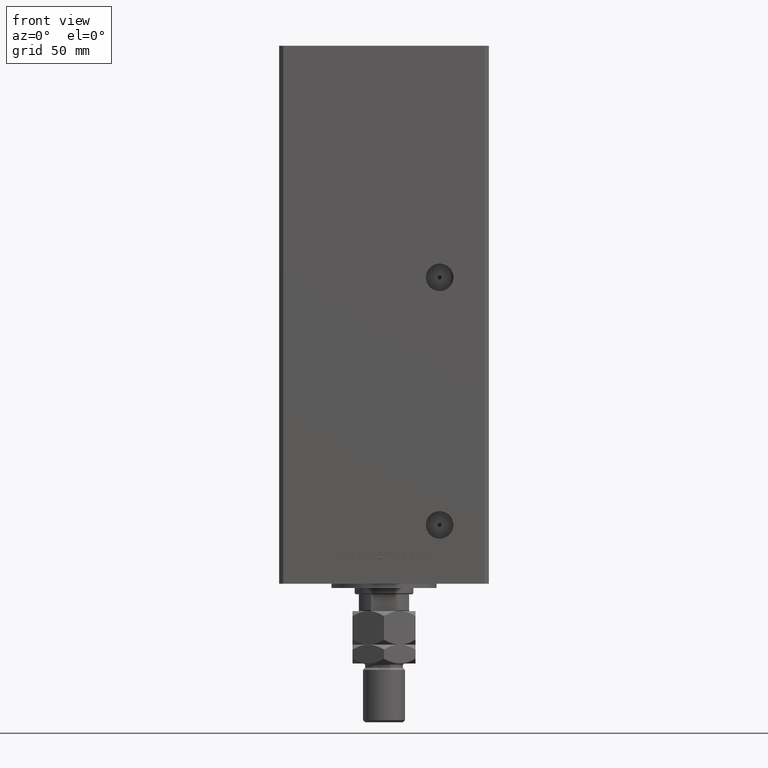
[diagram: clean part render]
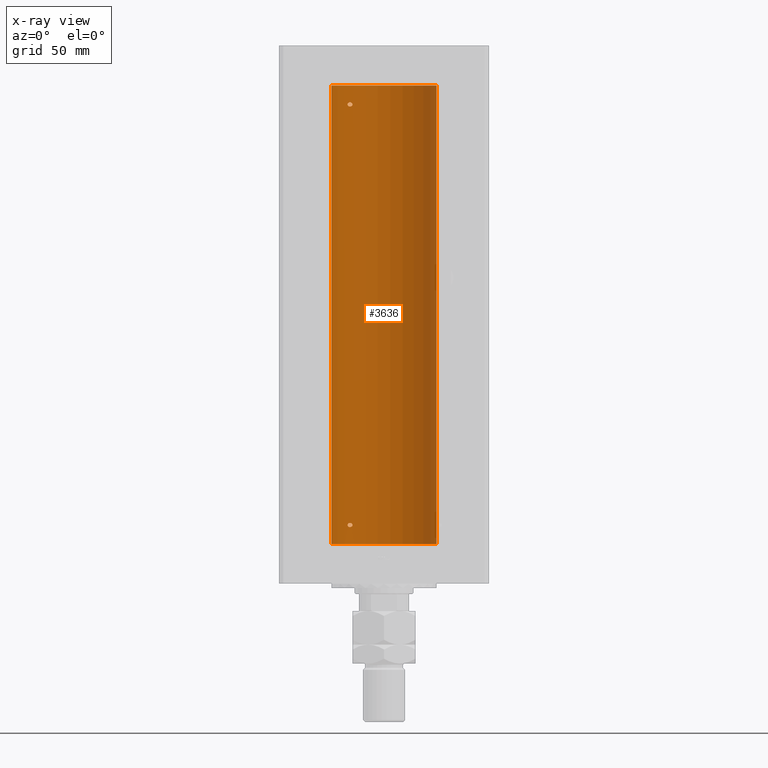
[diagram: x-ray — body ghosted, one internal face saturated and labeled with its STEP entity id]
A machine part, front view, then the same camera in x-ray: the body is ghosted and one INTERNAL B-rep face — a face not visible from any outside direction — is saturated and labeled: STEP entity #3636.
In plain terms, the highlighted cylindrical surface (partial cylindrical patch) has radius 25 mm, axis along (-0, -0, -1).
Its self-contained STEP definition (entity closure, byte-faithful):
#992 = CARTESIAN_POINT ( 'NONE',  ( 25.00000000000000000, 3.061616997868383043E-15, 0.000000000000000000 ) ) ;
#1383 = EDGE_CURVE ( 'NONE', #35095, #11781, #13237, .T. ) ;
#2317 = CARTESIAN_POINT ( 'NONE',  ( -15.70535969280556543, 19.45169171760799642, 9.898960772112495476 ) ) ;
#2929 = CARTESIAN_POINT ( 'NONE',  ( -16.08757264251635988, 19.13682698743031096, 8.003442765848202356 ) ) ;
#3201 = ORIENTED_EDGE ( 'NONE', *, *, #29396, .F. ) ;
#3269 = CARTESIAN_POINT ( 'NONE',  ( -16.34293146994552259, 18.91921593628409681, 208.4973425906725879 ) ) ;
#3311 = ORIENTED_EDGE ( 'NONE', *, *, #36010, .T. ) ;
#3636 = ADVANCED_FACE ( 'NONE', ( #5822, #45820, #30380 ), #46348, .F. ) ;
#4100 = DIRECTION ( 'NONE',  ( -0.000000000000000000, -0.000000000000000000, -1.000000000000000000 ) ) ;
#4216 = CARTESIAN_POINT ( 'NONE',  ( -17.34935157289806185, 17.99999999999981526, 209.5000000000001137 ) ) ;
#4348 = CARTESIAN_POINT ( 'NONE',  ( -14.99999999999999112, 20.00000000000000711, 209.5000000000000000 ) ) ;
#5822 = FACE_OUTER_BOUND ( 'NONE', #6387, .T. ) ;
#5971 = CARTESIAN_POINT ( 'NONE',  ( -17.05007833789896310, 18.28384926940283606, 9.701373999012135485 ) ) ;
#6243 = CARTESIAN_POINT ( 'NONE',  ( -17.34935157289750407, 17.99999999999998224, 9.170973690606334827 ) ) ;
#6387 = EDGE_LOOP ( 'NONE', ( #36569, #18365, #3311, #27981 ) ) ;
#7111 = CARTESIAN_POINT ( 'NONE',  ( -15.34666241858321456, 19.73581294411414078, 8.312122460537613833 ) ) ;
#7447 = CARTESIAN_POINT ( 'NONE',  ( -15.95808436639360117, 19.24489366819300784, 208.5242608788495886 ) ) ;
#8142 = CARTESIAN_POINT ( 'NONE',  ( -15.10490800566735103, 19.92096305044241689, 209.8962931740442457 ) ) ;
#8275 = DIRECTION ( 'NONE',  ( 1.000000000000000000, 0.000000000000000000, 0.000000000000000000 ) ) ;
#8562 = VERTEX_POINT ( 'NONE', #15895 ) ;
#8946 = CARTESIAN_POINT ( 'NONE',  ( -17.34935157289750052, 17.99999999999997868, 8.828998360425810432 ) ) ;
#9506 = CARTESIAN_POINT ( 'NONE',  ( -15.00000000000003020, 19.99999999999998224, 9.000000000000000000 ) ) ;
#9733 = CARTESIAN_POINT ( 'NONE',  ( -16.46844752485329622, 18.81003400474351750, 8.011544319038927497 ) ) ;
#10352 = EDGE_CURVE ( 'NONE', #40541, #8562, #40722, .T. ) ;
#10598 = CARTESIAN_POINT ( 'NONE',  ( -15.34666241858318259, 19.73581294411415854, 208.8121224605376369 ) ) ;
#11363 = CARTESIAN_POINT ( 'NONE',  ( -16.46844752485324648, 18.81003400474354947, 208.5115443190389612 ) ) ;
#11539 = CARTESIAN_POINT ( 'NONE',  ( -17.34935157289746854, 18.00000000000001421, 209.6709736906063029 ) ) ;
#11781 = VERTEX_POINT ( 'NONE', #992 ) ;
#11790 = CARTESIAN_POINT ( 'NONE',  ( -15.95796937689560480, 19.24499537862567422, 210.4757730996522298 ) ) ;
#12051 = EDGE_LOOP ( 'NONE', ( #33694, #39649 ) ) ;
#13237 = LINE ( 'NONE', #48797, #48372 ) ;
#13650 = CARTESIAN_POINT ( 'NONE',  ( -16.71492528194906768, 18.59135325782698089, 8.080141558342051056 ) ) ;
#14169 = CARTESIAN_POINT ( 'NONE',  ( -17.34935157289809737, 17.99999999999978684, 9.000000000000094147 ) ) ;
#14259 = CARTESIAN_POINT ( 'NONE',  ( -17.30269557861141294, 18.04515136187502478, 209.1660420817557053 ) ) ;
#14431 = CARTESIAN_POINT ( 'NONE',  ( -15.58164749401203331, 19.55082150006402486, 8.156678072685190628 ) ) ;
#15473 = CARTESIAN_POINT ( 'NONE',  ( -15.34624284195505162, 19.73614442075940190, 210.1876185318512853 ) ) ;
#15843 = CARTESIAN_POINT ( 'NONE',  ( -25.00000000000000000, 0.000000000000000000, 0.000000000000000000 ) ) ;
#15895 = CARTESIAN_POINT ( 'NONE',  ( -17.34935157289806185, 17.99999999999981526, 209.5000000000001137 ) ) ;
#16996 = B_SPLINE_CURVE_WITH_KNOTS ( 'NONE', 3,
 ( #22184, #37870, #38381, #30265, #21662, #26359, #38127, #37608, #2317, #46751, #18264, #30007, #34460, #41790, #5971, #34203, #50140, #21922, #6243, #18512 ),
 .UNSPECIFIED., .F., .F.,
 ( 4, 2, 2, 2, 2, 2, 2, 2, 2, 4 ),
 ( 0.004032696862986564698, 0.004284699222246930381, 0.004536701581507295196, 0.005040706300028027428, 0.005544711018548758794, 0.006048715737069490159, 0.007056725174110960695, 0.007308727533371327245, 0.007560729892631692928, 0.008064734611152420823 ),
 .UNSPECIFIED. ) ;
#18189 = CARTESIAN_POINT ( 'NONE',  ( -17.34935157289747210, 18.00000000000002132, 209.3289983604257998 ) ) ;
#18264 = CARTESIAN_POINT ( 'NONE',  ( -16.08745393861406825, 19.13692152169247507, 9.996501509986934764 ) ) ;
#18359 = CARTESIAN_POINT ( 'NONE',  ( -15.01482636753737054, 19.98889854010113964, 8.831202661007710120 ) ) ;
#18365 = ORIENTED_EDGE ( 'NONE', *, *, #41265, .T. ) ;
#18512 = CARTESIAN_POINT ( 'NONE',  ( -17.34935157289809737, 17.99999999999978684, 9.000000000000094147 ) ) ;
#18702 = CARTESIAN_POINT ( 'NONE',  ( -25.00000000000000000, 0.000000000000000000, 218.5000000000000000 ) ) ;
#18749 = EDGE_CURVE ( 'NONE', #23538, #41786, #27054, .T. ) ;
#19037 = CARTESIAN_POINT ( 'NONE',  ( 0.000000000000000000, 0.000000000000000000, 218.5000000000000000 ) ) ;
#19211 = CARTESIAN_POINT ( 'NONE',  ( -15.23538646979298505, 19.82157806413532697, 208.9119998952828041 ) ) ;
#19655 = CARTESIAN_POINT ( 'NONE',  ( -15.06763582406798818, 19.94912143246363811, 209.8250699387717475 ) ) ;
#20419 = CARTESIAN_POINT ( 'NONE',  ( -16.46913072925702792, 18.81168496547891777, 210.5057775588113884 ) ) ;
#20847 = CARTESIAN_POINT ( 'NONE',  ( -17.34935157289809737, 17.99999999999978684, 9.000000000000094147 ) ) ;
#21662 = CARTESIAN_POINT ( 'NONE',  ( -15.10490800566739011, 19.92096305044237425, 9.396293174044259899 ) ) ;
#21767 = CARTESIAN_POINT ( 'NONE',  ( 0.000000000000000000, 0.000000000000000000, 218.5000000000000000 ) ) ;
#21922 = CARTESIAN_POINT ( 'NONE',  ( -17.30163983552692741, 18.04615713653365106, 9.336007472727791523 ) ) ;
#22184 = CARTESIAN_POINT ( 'NONE',  ( -15.00000000000003020, 19.99999999999998224, 9.000000000000000000 ) ) ;
#22444 = VERTEX_POINT ( 'NONE', #33314 ) ;
#22696 = DIRECTION ( 'NONE',  ( -0.000000000000000000, 0.000000000000000000, 1.000000000000000000 ) ) ;
#23145 = AXIS2_PLACEMENT_3D ( 'NONE', #19037, #22696, #38643 ) ;
#23388 = CARTESIAN_POINT ( 'NONE',  ( -15.00000000000018119, 20.00000000000001421, 209.4159474586024032 ) ) ;
#23538 = VERTEX_POINT ( 'NONE', #20847 ) ;
#23824 = CARTESIAN_POINT ( 'NONE',  ( -15.00000000000018474, 20.00000000000002487, 209.5840388036241109 ) ) ;
#24072 = CARTESIAN_POINT ( 'NONE',  ( -15.23594348686699185, 19.82115246225716021, 210.0887219326858144 ) ) ;
#24200 = CIRCLE ( 'NONE', #42587, 25.00000000000000000 ) ;
#24325 = CARTESIAN_POINT ( 'NONE',  ( -15.58230678163759642, 19.55030131031898577, 210.3437394867029582 ) ) ;
#25675 = CARTESIAN_POINT ( 'NONE',  ( -16.34293146994556167, 18.91921593628406484, 7.997342590672626095 ) ) ;
#26283 = CARTESIAN_POINT ( 'NONE',  ( -16.08757264251632080, 19.13682698743034649, 208.5034427658482059 ) ) ;
#26359 = CARTESIAN_POINT ( 'NONE',  ( -15.23594348686702560, 19.82115246225712824, 9.588721932685826843 ) ) ;
#27054 = B_SPLINE_CURVE_WITH_KNOTS ( 'NONE', 3,
 ( #14169, #8946, #37448, #33788, #40834, #33517, #13650, #9733, #25675, #2929, #30374, #38224, #14431, #7111, #35323, #30882, #46847, #18359, #43173, #46068 ),
 .UNSPECIFIED., .F., .F.,
 ( 4, 2, 2, 2, 2, 2, 2, 2, 2, 4 ),
 ( 1.994630283518400476E-16, 0.0005040871078734959028, 0.001008174215746792312, 0.001512261323620088613, 0.002016348431493385131, 0.002520435539366681649, 0.003024522647239977734, 0.003528609755113270782, 0.003780653309049917740, 0.004032696862986564698 ),
 .UNSPECIFIED. ) ;
#27491 = CARTESIAN_POINT ( 'NONE',  ( -16.99843849356149050, 18.33190197607055794, 210.2468335145757123 ) ) ;
#27981 = ORIENTED_EDGE ( 'NONE', *, *, #48300, .F. ) ;
#27999 = CARTESIAN_POINT ( 'NONE',  ( -17.30163983552688833, 18.04615713653367948, 209.8360074727278572 ) ) ;
#28134 = CARTESIAN_POINT ( 'NONE',  ( 0.000000000000000000, 0.000000000000000000, 0.000000000000000000 ) ) ;
#28376 = EDGE_CURVE ( 'NONE', #8562, #40541, #46331, .T. ) ;
#29396 = EDGE_CURVE ( 'NONE', #41786, #23538, #16996, .T. ) ;
#30007 = CARTESIAN_POINT ( 'NONE',  ( -16.46913072925706700, 18.81168496547887869, 10.00577755881140973 ) ) ;
#30265 = CARTESIAN_POINT ( 'NONE',  ( -15.06763582406801483, 19.94912143246361680, 9.325069938771756384 ) ) ;
#30374 = CARTESIAN_POINT ( 'NONE',  ( -15.95808436639363492, 19.24489366819298297, 8.024260878849535317 ) ) ;
#30380 = FACE_BOUND ( 'NONE', #12051, .T. ) ;
#30448 = DIRECTION ( 'NONE',  ( -0.000000000000000000, -0.000000000000000000, -1.000000000000000000 ) ) ;
#30457 = CARTESIAN_POINT ( 'NONE',  ( -16.71492528194901794, 18.59135325782701642, 208.5801415583420351 ) ) ;
#30882 = CARTESIAN_POINT ( 'NONE',  ( -15.10490010356608792, 19.92096840819818127, 8.603766671322519599 ) ) ;
#30965 = CARTESIAN_POINT ( 'NONE',  ( -15.70664578139651546, 19.45064696206092947, 208.6005795994921925 ) ) ;
#31232 = CARTESIAN_POINT ( 'NONE',  ( -15.10490010356605595, 19.92096840819819903, 209.1037666713224894 ) ) ;
#31410 = CARTESIAN_POINT ( 'NONE',  ( -16.72476285461317502, 18.58415905903083498, 210.4449447607957211 ) ) ;
#32428 = CARTESIAN_POINT ( 'NONE',  ( -17.19010376497220705, 18.15221652163111088, 210.0356701235680248 ) ) ;
#33314 = CARTESIAN_POINT ( 'NONE',  ( -25.00000000000000000, 0.000000000000000000, 218.5000000000000000 ) ) ;
#33517 = CARTESIAN_POINT ( 'NONE',  ( -16.83415218046514994, 18.48332662461723075, 8.134317266281160030 ) ) ;
#33694 = ORIENTED_EDGE ( 'NONE', *, *, #28376, .F. ) ;
#33788 = CARTESIAN_POINT ( 'NONE',  ( -17.15234217094409530, 18.18812579706693100, 8.396573043774957057 ) ) ;
#34127 = CARTESIAN_POINT ( 'NONE',  ( -17.05249165747618534, 18.28208333366438509, 208.7922192200363725 ) ) ;
#34203 = CARTESIAN_POINT ( 'NONE',  ( -17.14593038898732047, 18.19399314418731706, 9.595944883196496633 ) ) ;
#34460 = CARTESIAN_POINT ( 'NONE',  ( -16.72476285461320700, 18.58415905903079945, 9.944944760795701555 ) ) ;
#34577 = DIRECTION ( 'NONE',  ( -1.000000000000000000, 0.000000000000000000, 0.000000000000000000 ) ) ;
#35095 = VERTEX_POINT ( 'NONE', #46649 ) ;
#35323 = CARTESIAN_POINT ( 'NONE',  ( -15.23538646979300637, 19.82157806413531276, 8.411999895282763262 ) ) ;
#36010 = EDGE_CURVE ( 'NONE', #22444, #47238, #38044, .T. ) ;
#36413 = ORIENTED_EDGE ( 'NONE', *, *, #18749, .F. ) ;
#36569 = ORIENTED_EDGE ( 'NONE', *, *, #1383, .F. ) ;
#37448 = CARTESIAN_POINT ( 'NONE',  ( -17.30269557861145202, 18.04515136187498570, 8.666042081755742643 ) ) ;
#37599 = AXIS2_PLACEMENT_3D ( 'NONE', #21767, #37709, #34577 ) ;
#37608 = CARTESIAN_POINT ( 'NONE',  ( -15.58230678163763372, 19.55030131031894669, 9.843739486702936858 ) ) ;
#37709 = DIRECTION ( 'NONE',  ( -0.000000000000000000, -0.000000000000000000, -1.000000000000000000 ) ) ;
#37870 = CARTESIAN_POINT ( 'NONE',  ( -15.00000000000022915, 19.99999999999999289, 9.084038803624169489 ) ) ;
#38044 = LINE ( 'NONE', #18702, #44821 ) ;
#38127 = CARTESIAN_POINT ( 'NONE',  ( -15.34624284195509958, 19.73614442075936637, 9.687618531851303061 ) ) ;
#38224 = CARTESIAN_POINT ( 'NONE',  ( -15.70664578139654566, 19.45064696206089749, 8.100579599492109040 ) ) ;
#38381 = CARTESIAN_POINT ( 'NONE',  ( -15.01476641895665232, 19.98894406010705183, 9.168794563401343467 ) ) ;
#38643 = DIRECTION ( 'NONE',  ( 1.000000000000000000, 0.000000000000000000, 0.000000000000000000 ) ) ;
#38834 = CARTESIAN_POINT ( 'NONE',  ( -15.01482636753733146, 19.98889854010115741, 209.3312026610076941 ) ) ;
#39082 = CARTESIAN_POINT ( 'NONE',  ( -17.15234217094406333, 18.18812579706696653, 208.8965730437749073 ) ) ;
#39649 = ORIENTED_EDGE ( 'NONE', *, *, #10352, .F. ) ;
#40025 = CARTESIAN_POINT ( 'NONE',  ( -17.05007833789892047, 18.28384926940287869, 210.2013739990121337 ) ) ;
#40541 = VERTEX_POINT ( 'NONE', #4348 ) ;
#40676 = DIRECTION ( 'NONE',  ( -0.000000000000000000, 0.000000000000000000, 1.000000000000000000 ) ) ;
#40722 = B_SPLINE_CURVE_WITH_KNOTS ( 'NONE', 3,
 ( #42683, #23824, #43953, #19655, #8142, #24072, #15473, #24325, #43438, #11790, #47371, #20419, #31410, #27491, #40025, #51286, #32428, #27999, #11539, #4216 ),
 .UNSPECIFIED., .F., .F.,
 ( 4, 2, 2, 2, 2, 2, 2, 2, 2, 4 ),
 ( 0.004032696862986557759, 0.004284699222246954667, 0.004536701581507351574, 0.005040706300028082940, 0.005544711018548810835, 0.006048715737069539598, 0.007056725174110996257, 0.007308727533371349797, 0.007560729892631701601, 0.008064734611152412150 ),
 .UNSPECIFIED. ) ;
#40834 = CARTESIAN_POINT ( 'NONE',  ( -17.05249165747622087, 18.28208333366434246, 8.292219220036422200 ) ) ;
#41265 = EDGE_CURVE ( 'NONE', #35095, #22444, #49858, .T. ) ;
#41606 = EDGE_LOOP ( 'NONE', ( #36413, #3201 ) ) ;
#41786 = VERTEX_POINT ( 'NONE', #9506 ) ;
#41790 = CARTESIAN_POINT ( 'NONE',  ( -16.99843849356151892, 18.33190197607051886, 9.746833514575651947 ) ) ;
#42492 = CARTESIAN_POINT ( 'NONE',  ( -14.99999999999999112, 20.00000000000000711, 209.5000000000000000 ) ) ;
#42587 = AXIS2_PLACEMENT_3D ( 'NONE', #28134, #40676, #8275 ) ;
#42683 = CARTESIAN_POINT ( 'NONE',  ( -14.99999999999999112, 20.00000000000000711, 209.5000000000000000 ) ) ;
#43173 = CARTESIAN_POINT ( 'NONE',  ( -15.00000000000022737, 20.00000000000001066, 8.915947458602445863 ) ) ;
#43262 = CARTESIAN_POINT ( 'NONE',  ( -15.06722189748648866, 19.94943357555938590, 209.1759803248789069 ) ) ;
#43438 = CARTESIAN_POINT ( 'NONE',  ( -15.70535969280552280, 19.45169171760802485, 210.3989607721124173 ) ) ;
#43953 = CARTESIAN_POINT ( 'NONE',  ( -15.01476641895662567, 19.98894406010707314, 209.6687945634013488 ) ) ;
#44821 = VECTOR ( 'NONE', #30448, 1000.000000000000000 ) ;
#45820 = FACE_BOUND ( 'NONE', #41606, .T. ) ;
#46068 = CARTESIAN_POINT ( 'NONE',  ( -15.00000000000003020, 19.99999999999998224, 9.000000000000000000 ) ) ;
#46331 = B_SPLINE_CURVE_WITH_KNOTS ( 'NONE', 3,
 ( #50844, #18189, #14259, #39082, #34127, #50063, #30457, #11363, #3269, #26283, #7447, #30965, #47187, #10598, #19211, #31232, #43262, #38834, #23388, #42492 ),
 .UNSPECIFIED., .F., .F.,
 ( 4, 2, 2, 2, 2, 2, 2, 2, 2, 4 ),
 ( 2.254873622441466949E-16, 0.0005040871078735091300, 0.001008174215746792746, 0.001512261323620076470, 0.002016348431493359978, 0.002520435539366643485, 0.003024522647239927427, 0.003528609755113210501, 0.003780653309049884347, 0.004032696862986557759 ),
 .UNSPECIFIED. ) ;
#46348 = CYLINDRICAL_SURFACE ( 'NONE', #37599, 25.00000000000000000 ) ;
#46649 = CARTESIAN_POINT ( 'NONE',  ( 25.00000000000000000, 3.061616997868383043E-15, 218.5000000000000000 ) ) ;
#46751 = CARTESIAN_POINT ( 'NONE',  ( -15.95796937689564210, 19.24499537862564225, 9.975773099652192499 ) ) ;
#46847 = CARTESIAN_POINT ( 'NONE',  ( -15.06722189748652241, 19.94943357555937169, 8.675980324878883820 ) ) ;
#47187 = CARTESIAN_POINT ( 'NONE',  ( -15.58164749401199956, 19.55082150006405328, 208.6566780726851391 ) ) ;
#47238 = VERTEX_POINT ( 'NONE', #15843 ) ;
#47371 = CARTESIAN_POINT ( 'NONE',  ( -16.08745393861402917, 19.13692152169251059, 210.4965015099869277 ) ) ;
#48300 = EDGE_CURVE ( 'NONE', #11781, #47238, #24200, .T. ) ;
#48372 = VECTOR ( 'NONE', #4100, 1000.000000000000000 ) ;
#48797 = CARTESIAN_POINT ( 'NONE',  ( 25.00000000000000000, 3.061616997868383043E-15, 218.5000000000000000 ) ) ;
#49858 = CIRCLE ( 'NONE', #23145, 25.00000000000000000 ) ;
#50063 = CARTESIAN_POINT ( 'NONE',  ( -16.83415218046510731, 18.48332662461726983, 208.6343172662811583 ) ) ;
#50140 = CARTESIAN_POINT ( 'NONE',  ( -17.19010376497224613, 18.15221652163108601, 9.535670123568010581 ) ) ;
#50844 = CARTESIAN_POINT ( 'NONE',  ( -17.34935157289806185, 17.99999999999981526, 209.5000000000001137 ) ) ;
#51286 = CARTESIAN_POINT ( 'NONE',  ( -17.14593038898727428, 18.19399314418736324, 210.0959448831964664 ) ) ;